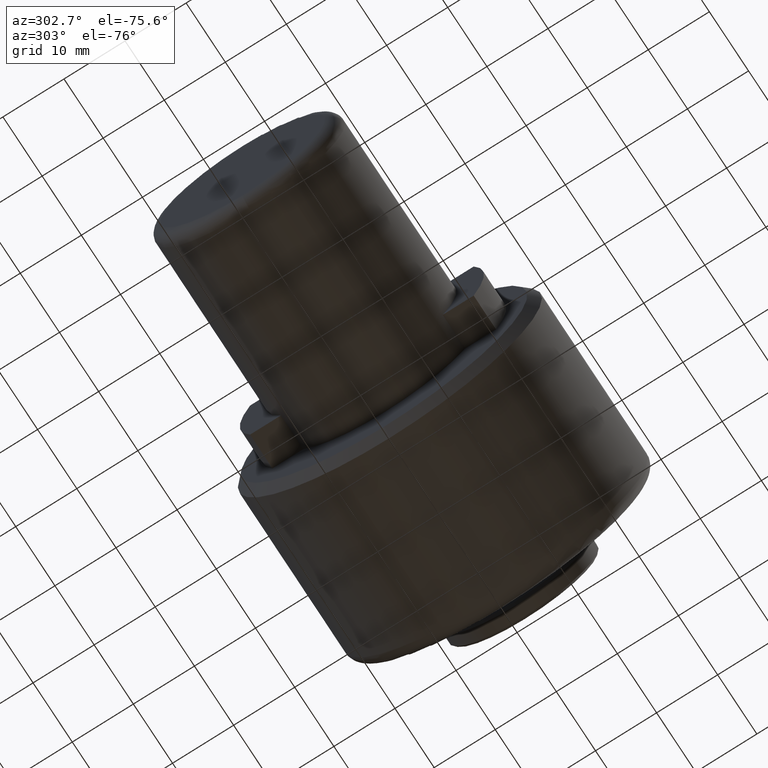
[diagram: clean part render]
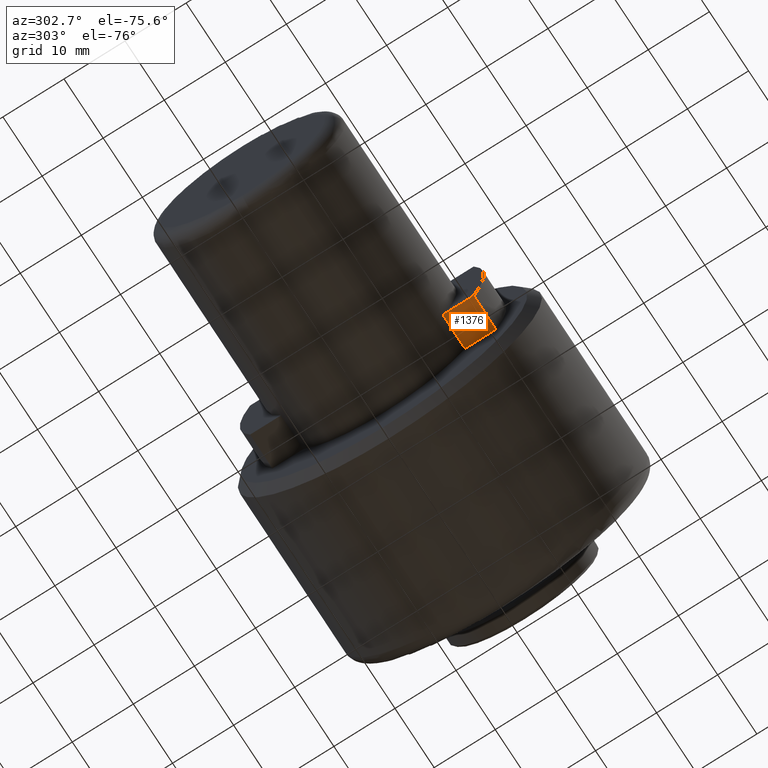
[diagram: same view with one face highlighted and labeled with its STEP entity id]
A machine part, auxiliary view. The second image highlights one B-rep face of the part: STEP entity #1376.
In plain terms, the highlighted planar face has unit normal (0, 0, -1).
Its self-contained STEP definition (entity closure, byte-faithful):
#3 = VERTEX_POINT ( 'NONE', #1336 ) ;
#43 = EDGE_CURVE ( 'NONE', #748, #541, #259, .T. ) ;
#48 = DIRECTION ( 'NONE',  ( 1.000000000000000000, -0.0000000000000000000, -0.0000000000000000000 ) ) ;
#57 = ORIENTED_EDGE ( 'NONE', *, *, #167, .T. ) ;
#69 = FACE_OUTER_BOUND ( 'NONE', #181, .T. ) ;
#149 = CARTESIAN_POINT ( 'NONE',  ( 30.39999999999999900, -18.30839971200000000, -8.050000000000000700 ) ) ;
#167 = EDGE_CURVE ( 'NONE', #3, #1091, #1000, .T. ) ;
#181 = EDGE_LOOP ( 'NONE', ( #364, #1200, #355, #57 ) ) ;
#189 = CARTESIAN_POINT ( 'NONE',  ( 33.25000000000000000, -18.30839971200000000, -8.050000000000000700 ) ) ;
#259 = LINE ( 'NONE', #1089, #1110 ) ;
#269 = DIRECTION ( 'NONE',  ( 0.0000000000000000000, 1.000000000000000000, 0.0000000000000000000 ) ) ;
#303 = VECTOR ( 'NONE', #48, 1000.000000000000000 ) ;
#355 = ORIENTED_EDGE ( 'NONE', *, *, #482, .T. ) ;
#364 = ORIENTED_EDGE ( 'NONE', *, *, #1410, .T. ) ;
#382 = PLANE ( 'NONE',  #1430 ) ;
#394 = LINE ( 'NONE', #189, #1249 ) ;
#414 = VECTOR ( 'NONE', #964, 1000.000000000000000 ) ;
#449 = DIRECTION ( 'NONE',  ( 0.0000000000000000000, 1.000000000000000000, 0.0000000000000000000 ) ) ;
#482 = EDGE_CURVE ( 'NONE', #748, #3, #394, .T. ) ;
#496 = CARTESIAN_POINT ( 'NONE',  ( 22.94394856799999600, -13.24565966385164900, -8.050000004311389300 ) ) ;
#541 = VERTEX_POINT ( 'NONE', #1312 ) ;
#748 = VERTEX_POINT ( 'NONE', #956 ) ;
#858 = DIRECTION ( 'NONE',  ( -1.000000000000000000, -0.0000000000000000000, -0.0000000000000000000 ) ) ;
#940 = DIRECTION ( 'NONE',  ( 0.0000000000000000000, 0.0000000000000000000, -1.000000000000000000 ) ) ;
#956 = CARTESIAN_POINT ( 'NONE',  ( 36.10000000000000100, -18.30839971065709900, -8.050000002608200600 ) ) ;
#964 = DIRECTION ( 'NONE',  ( 0.0000000000000000000, 1.000000000000000000, 0.0000000000000000000 ) ) ;
#1000 = LINE ( 'NONE', #1230, #414 ) ;
#1089 = CARTESIAN_POINT ( 'NONE',  ( 36.10000000000000100, 0.0000000000000000000, -8.050000005216396900 ) ) ;
#1091 = VERTEX_POINT ( 'NONE', #1106 ) ;
#1106 = CARTESIAN_POINT ( 'NONE',  ( 30.39999999995988100, -13.24565966516176400, -8.050000002155693200 ) ) ;
#1110 = VECTOR ( 'NONE', #449, 1000.000000000000000 ) ;
#1187 = LINE ( 'NONE', #496, #303 ) ;
#1200 = ORIENTED_EDGE ( 'NONE', *, *, #43, .F. ) ;
#1230 = CARTESIAN_POINT ( 'NONE',  ( 30.39999999999999900, -15.77702968900000100, -8.050000000000000700 ) ) ;
#1249 = VECTOR ( 'NONE', #858, 1000.000000000000000 ) ;
#1312 = CARTESIAN_POINT ( 'NONE',  ( 36.10000000000000100, -13.24565966357664100, -8.050000004763893100 ) ) ;
#1336 = CARTESIAN_POINT ( 'NONE',  ( 30.39999999999999900, -18.30839971180389000, -8.050000000000000700 ) ) ;
#1376 = ADVANCED_FACE ( 'NONE', ( #69 ), #382, .T. ) ;
#1410 = EDGE_CURVE ( 'NONE', #1091, #541, #1187, .T. ) ;
#1430 = AXIS2_PLACEMENT_3D ( 'NONE', #149, #940, #269 ) ;